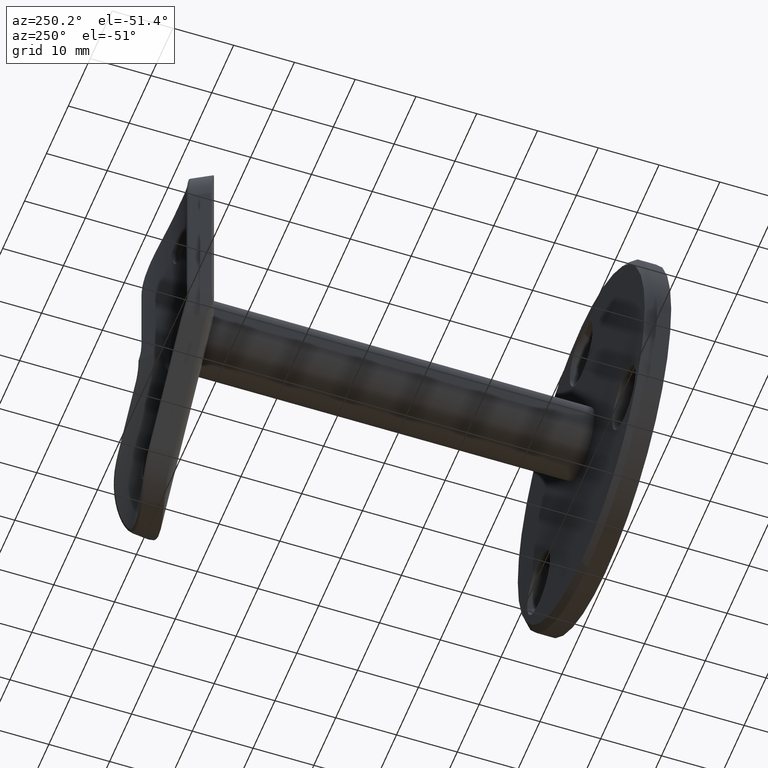
[diagram: clean part render]
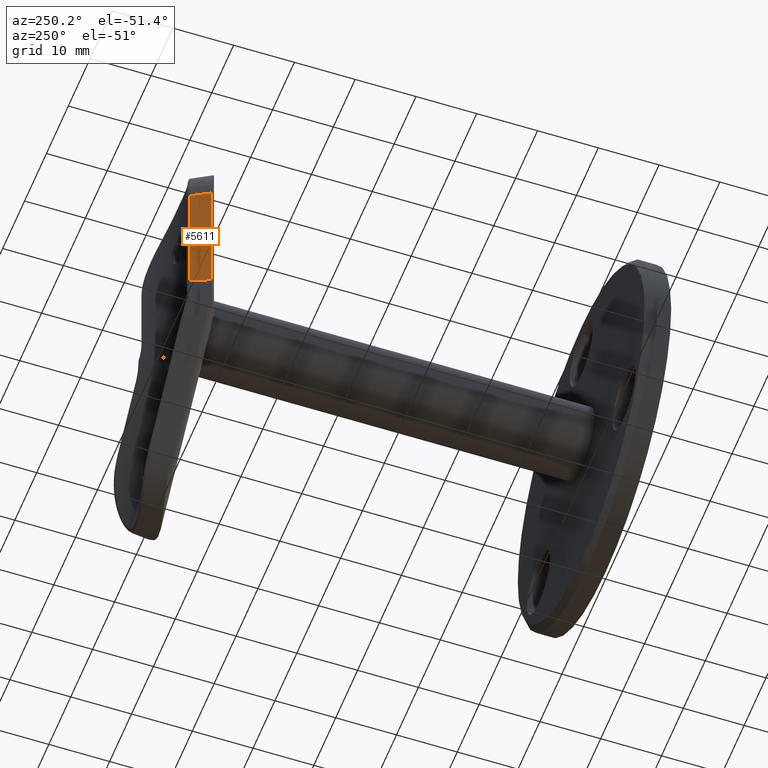
[diagram: same view with one face highlighted and labeled with its STEP entity id]
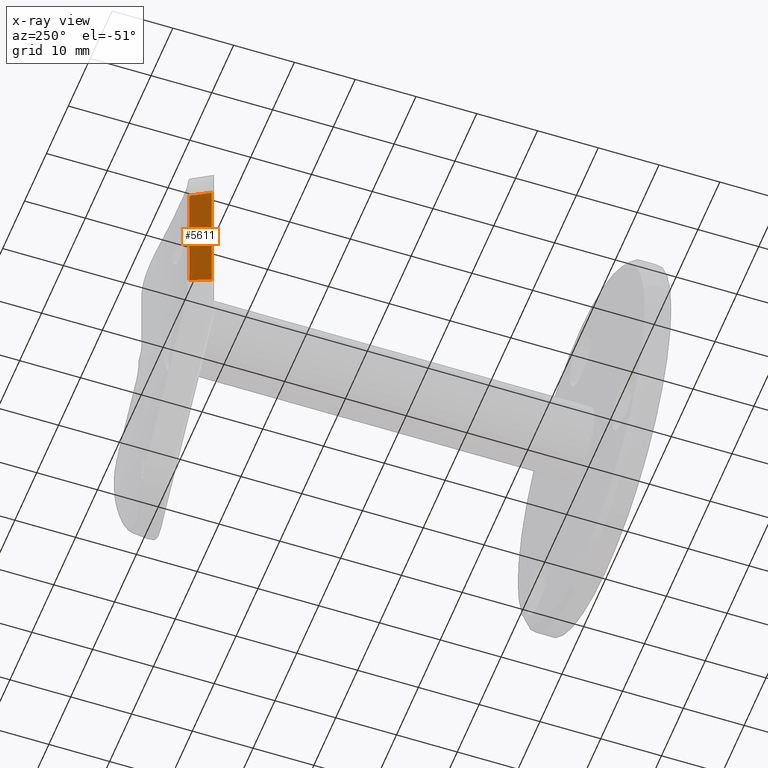
[diagram: x-ray of the same camera — body ghosted, the highlighted face saturated]
A machine part, auxiliary view. The second image highlights one B-rep face of the part: STEP entity #5611.
The next image is the same camera in x-ray: the body ghosted, the highlighted face saturated — about 0% of this face is hidden behind the body in this view.
In plain terms, the highlighted planar face has unit normal (-0.8683, 0.496, 0).
Its self-contained STEP definition (entity closure, byte-faithful):
#361 = CARTESIAN_POINT ( 'NONE',  ( -12.50000000000000000, 3.318729470161013500, -58.40618737384683400 ) ) ;
#1903 = VECTOR ( 'NONE', #6426, 1000.000000000000000 ) ;
#2279 = VERTEX_POINT ( 'NONE', #3669 ) ;
#3293 = EDGE_CURVE ( 'NONE', #10333, #2279, #3971, .T. ) ;
#3669 = CARTESIAN_POINT ( 'NONE',  ( -10.76103118381681300, 6.362797238949669400, -12.50000000000000400 ) ) ;
#3971 = LINE ( 'NONE', #7907, #19457 ) ;
#5378 = EDGE_CURVE ( 'NONE', #9981, #19361, #13540, .T. ) ;
#5611 = ADVANCED_FACE ( 'NONE', ( #10505 ), #10609, .T. ) ;
#6426 = DIRECTION ( 'NONE',  ( -0.0000000000000000000, -0.0000000000000000000, -1.000000000000000000 ) ) ;
#6934 = DIRECTION ( 'NONE',  ( -0.0000000000000000000, -0.0000000000000000000, 1.000000000000000000 ) ) ;
#7337 = ORIENTED_EDGE ( 'NONE', *, *, #3293, .T. ) ;
#7907 = CARTESIAN_POINT ( 'NONE',  ( -12.50000000000000000, 3.318729470161013500, -12.50000000000000400 ) ) ;
#7930 = EDGE_CURVE ( 'NONE', #19361, #10333, #14139, .T. ) ;
#9163 = DIRECTION ( 'NONE',  ( -0.8683043861047214900, 0.4960317460317461600, 0.0000000000000000000 ) ) ;
#9521 = CARTESIAN_POINT ( 'NONE',  ( -12.50000000000000000, 3.318729470161013500, -34.08103499973749700 ) ) ;
#9981 = VERTEX_POINT ( 'NONE', #17171 ) ;
#10218 = EDGE_CURVE ( 'NONE', #2279, #9981, #10354, .T. ) ;
#10333 = VERTEX_POINT ( 'NONE', #11078 ) ;
#10354 = LINE ( 'NONE', #13809, #1903 ) ;
#10505 = FACE_OUTER_BOUND ( 'NONE', #15784, .T. ) ;
#10609 = PLANE ( 'NONE',  #13113 ) ;
#10869 = DIRECTION ( 'NONE',  ( 0.4960317460317461600, 0.8683043861047214900, -0.0000000000000000000 ) ) ;
#11078 = CARTESIAN_POINT ( 'NONE',  ( -12.50000000000000000, 3.318729470161013500, -12.50000000000001800 ) ) ;
#11219 = CARTESIAN_POINT ( 'NONE',  ( -12.85170797618814800, 2.703064080203016100, -34.22671721346941400 ) ) ;
#11304 = ORIENTED_EDGE ( 'NONE', *, *, #5378, .T. ) ;
#11331 = CARTESIAN_POINT ( 'NONE',  ( -12.50000000000000000, 3.318729470161013500, -58.40618737384683400 ) ) ;
#11922 = VECTOR ( 'NONE', #14334, 1000.000000000000200 ) ;
#13113 = AXIS2_PLACEMENT_3D ( 'NONE', #361, #9163, #18129 ) ;
#13540 = LINE ( 'NONE', #11219, #11922 ) ;
#13809 = CARTESIAN_POINT ( 'NONE',  ( -10.76103118381681300, 6.362797238949669400, -58.40618737384683400 ) ) ;
#13895 = ORIENTED_EDGE ( 'NONE', *, *, #10218, .T. ) ;
#14139 = LINE ( 'NONE', #11331, #17180 ) ;
#14334 = DIRECTION ( 'NONE',  ( -0.4858819846047193200, -0.8505372120568734900, -0.2012589077360307000 ) ) ;
#15784 = EDGE_LOOP ( 'NONE', ( #7337, #13895, #11304, #19297 ) ) ;
#17171 = CARTESIAN_POINT ( 'NONE',  ( -10.76103118381681300, 6.362797238949669400, -33.36073053153052800 ) ) ;
#17180 = VECTOR ( 'NONE', #6934, 1000.000000000000000 ) ;
#18129 = DIRECTION ( 'NONE',  ( -0.4960317460317461600, -0.8683043861047214900, 0.0000000000000000000 ) ) ;
#19297 = ORIENTED_EDGE ( 'NONE', *, *, #7930, .T. ) ;
#19361 = VERTEX_POINT ( 'NONE', #9521 ) ;
#19457 = VECTOR ( 'NONE', #10869, 1000.000000000000000 ) ;